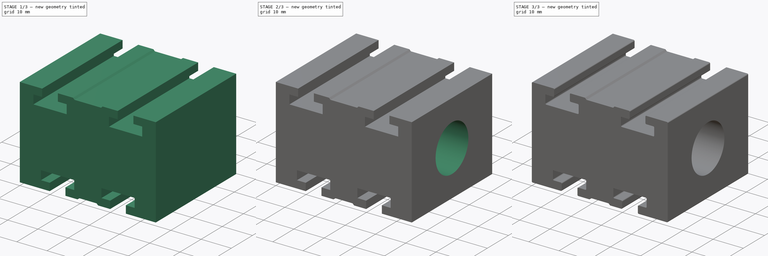
[diagram: build sequence overview — one tinted view per stage of 3, left to right]
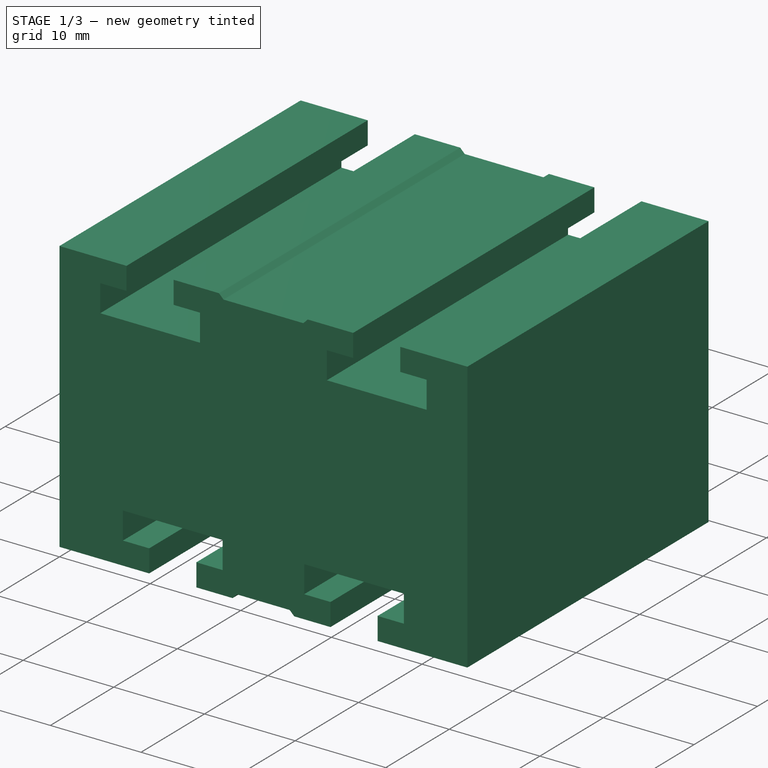
[diagram: stage 1 of 3 — iso view after this stage's code; geometry added in this stage tinted green]
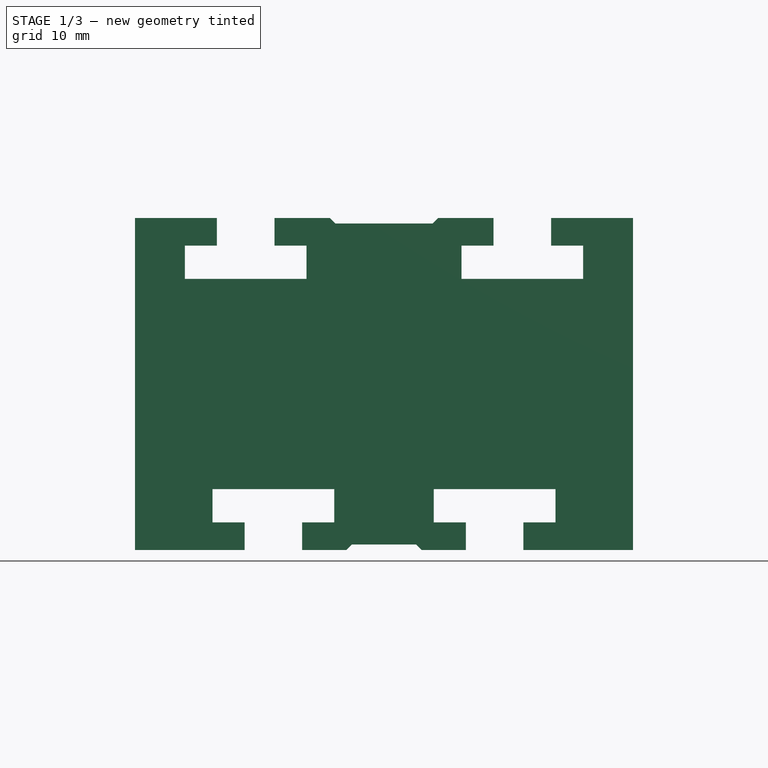
[diagram: stage 1 of 3 — front view after this stage's code; geometry added in this stage tinted green]
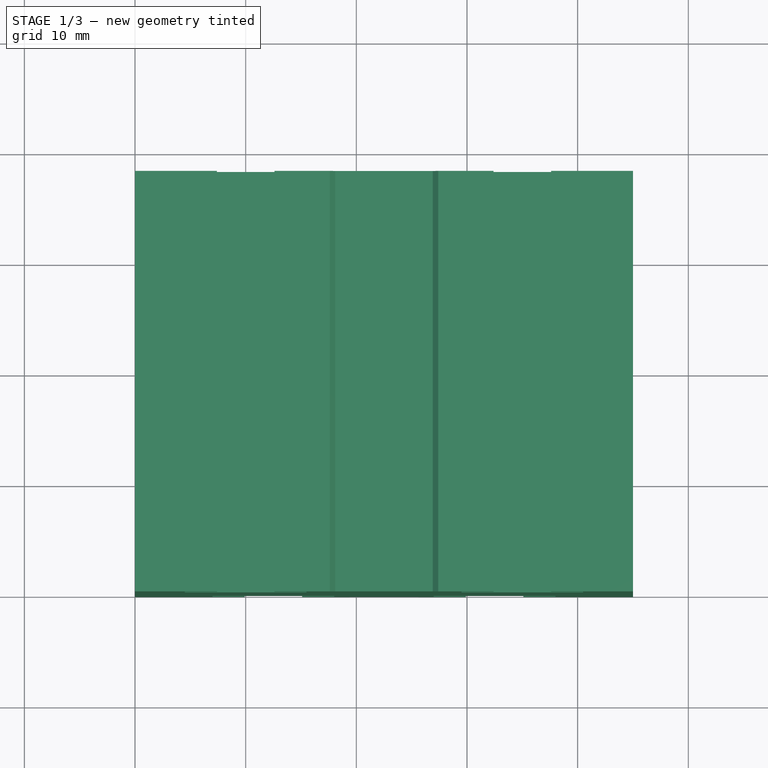
[diagram: stage 1 of 3 — top view after this stage's code; geometry added in this stage tinted green]
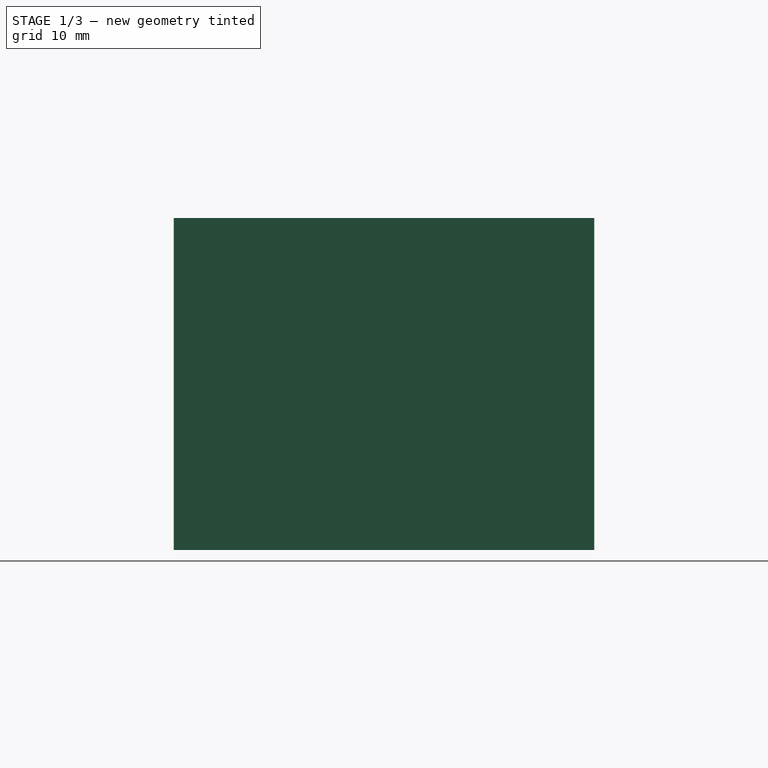
[diagram: stage 1 of 3 — right view after this stage's code; geometry added in this stage tinted green]
FCSTD DOCUMENT  (FreeCAD 0.20R27422 (Git))
Label: MGN_T8_nut_housing_1A
License: All rights reserved
LicenseURL: http://en.wikipedia.org/wiki/All_rights_reserved
objects: Sketcher::SketchObject×5, PartDesign::Hole×4, Spreadsheet::Sheet×1, PartDesign::Pad×1, PartDesign::Pocket×1, PartDesign::Fillet×1, PartDesign::Body×1
note: 20 computed .brp shape members not serialized (recipe doc carries the construction recipe); baked Part::Feature solids carry a one-line shape summary decoded from their .brp

FEATURE [Spreadsheet::Sheet] Spreadsheet  label="dim"
  cells = C1=Block dimensions; D1=block_size_x; E1(block_size_x)=45; D2=bock_size_y; E2(block_size_y)=38; D3=block_size_z; E3(block_size_z)=30; C4=T slot dimensions; D4=tslot_width; E4(tslot_width)=5.2; D5=tslot_head_width; E5(tslot_head_width)=11; D6=tslot_step_height; E6(tslot_step_height)=2.5; D7=tslot_root_height; E7(tslot_root_height)=5.5; C8=Slot Spacings; D8=slot_spacing_top; E8(slot_spacing_top)=25; D9=slot_spacing_bottom; E9(slot_spacing_bottom)=20; C10=Nut geometry; D10=nut_od; E10(nut_od)=22; D11=nut_thru_hole_dia; E11(nut_thru_hole_dia)=11; D12=nut_bolt_circle_dia; E12(nut_bolt_circle_dia)=16; D13=nut_counterbore_dia; E13(nut_counterbore_dia)=15.5; D14=nut_pocket_depth; E14(nut_pocket_depth)=3.5; D15=nut_counterbore_depth; E15(nut_counterbore_depth)=25; D16=nut_bolt_depth; E16(nut_bolt_depth)=5
FEATURE [Sketcher::SketchObject] Sketch
  FullyConstrained = false
  MapMode = 5
  Placement = pos=(0,0,0) rot=(1,0,0;1.5708rad)
  expr: Constraints[10] = <<dim>>.block_size_z
  expr: Constraints[9] = <<dim>>.block_size_x
  sketch-geometry (5):
    g0: LineSegment StartX=0 StartY=0 StartZ=0 EndX=45 EndY=0 EndZ=0
    g1: LineSegment StartX=45 StartY=0 StartZ=0 EndX=45 EndY=30 EndZ=0
    g2: LineSegment StartX=45 StartY=30 StartZ=0 EndX=0 EndY=30 EndZ=0
    g3: LineSegment StartX=0 StartY=30 StartZ=0 EndX=0 EndY=0 EndZ=0
    g4: LineSegment StartX=22.5 StartY=54.5625 StartZ=0 EndX=22.5 EndY=-13.5744 EndZ=0
  constraints (12):
    c: Coincident(g0,g1)
    c: Coincident(g1,g2)
    c: Coincident(g2,g3)
    c: Coincident(g3,g0)
    c: Horizontal(g0)
    c: Horizontal(g2)
    c: Vertical(g1)
    c: Vertical(g3)
    c: Coincident(g0,g-1)
    c: Distance(g2) = 45
    c: Distance(g1) = 30
    c: Symmetric(g0,g0,g4)
FEATURE [PartDesign::Pad] Pad  label="Block"
  Direction = (0,-1,2e-16)
  Length = 38
  Length2 = 10
  Placement = pos=(0,0,0) rot=(1,0,0;1.5708rad)
  Profile = -> Sketch
  ReferenceAxis = -> Sketch [N_Axis]
  Reversed = true
  Type = 0
  expr: Length = <<dim>>.block_size_y
FEATURE [Sketcher::SketchObject] Sketch001
  ExternalGeometry = -> [Sketch]
  FullyConstrained = false
  MapMode = 5
  Placement = pos=(0,0,0) rot=(1,0,0;1.5708rad)
  Support = -> [XZ_Plane]
  expr: Constraints[124] = <<dim>>.block_size_x / 2
  expr: Constraints[18] = <<dim>>.tslot_step_height + 1
  expr: Constraints[19] = <<dim>>.tslot_root_height - <<dim>>.tslot_step_height
  expr: Constraints[20] = <<dim>>.tslot_head_width
  expr: Constraints[21] = <<dim>>.tslot_width
  expr: Constraints[42] = <<dim>>.tslot_step_height + 1
  expr: Constraints[43] = <<dim>>.tslot_root_height - <<dim>>.tslot_step_height
  expr: Constraints[44] = <<dim>>.tslot_head_width
  expr: Constraints[45] = <<dim>>.tslot_width
  expr: Constraints[66] = <<dim>>.tslot_width
  expr: Constraints[86] = <<dim>>.tslot_width
  expr: Constraints[90] = <<dim>>.slot_spacing_top
  expr: Constraints[91] = <<dim>>.slot_spacing_bottom
  expr: Constraints[92] = <<dim>>.tslot_head_width
  expr: Constraints[93] = <<dim>>.tslot_root_height - <<dim>>.tslot_step_height
  expr: Constraints[94] = <<dim>>.tslot_step_height
  expr: Constraints[95] = <<dim>>.tslot_step_height
  sketch-geometry (46):
    g0: LineSegment StartX=4.5 StartY=27.5 StartZ=0 EndX=7.4 EndY=27.5 EndZ=0
    g1: LineSegment StartX=15.5 StartY=27.5 StartZ=0 EndX=15.5 EndY=24.5 EndZ=0
    g2: LineSegment StartX=15.5 StartY=24.5 StartZ=0 EndX=4.5 EndY=24.5 EndZ=0
    g3: LineSegment StartX=4.5 StartY=24.5 StartZ=0 EndX=4.5 EndY=27.5 EndZ=0
    g4: LineSegment StartX=12.6 StartY=27.5 StartZ=0 EndX=12.6 EndY=31 EndZ=0
    g5: LineSegment StartX=12.6 StartY=31 StartZ=0 EndX=7.4 EndY=31 EndZ=0
    g6: LineSegment StartX=7.4 StartY=31 StartZ=0 EndX=7.4 EndY=27.5 EndZ=0
    g7: LineSegment StartX=12.6 StartY=27.5 StartZ=0 EndX=15.5 EndY=27.5 EndZ=0
    g8: GeomPoint X=10 Y=27.5 Z=0
    g9: LineSegment StartX=-7.87938 StartY=15 StartZ=0 EndX=50.8772 EndY=15 EndZ=0
    g10: LineSegment StartX=29.5 StartY=27.5 StartZ=0 EndX=32.4 EndY=27.5 EndZ=0
    g11: LineSegment StartX=40.5 StartY=27.5 StartZ=0 EndX=40.5 EndY=24.5 EndZ=0
    g12: LineSegment StartX=40.5 StartY=24.5 StartZ=0 EndX=29.5 EndY=24.5 EndZ=0
    g13: LineSegment StartX=29.5 StartY=24.5 StartZ=0 EndX=29.5 EndY=27.5 EndZ=0
    g14: LineSegment StartX=37.6 StartY=27.5 StartZ=0 EndX=37.6 EndY=31 EndZ=0
    g15: LineSegment StartX=37.6 StartY=31 StartZ=0 EndX=32.4 EndY=31 EndZ=0
    g16: LineSegment StartX=32.4 StartY=31 StartZ=0 EndX=32.4 EndY=27.5 EndZ=0
    g17: LineSegment StartX=37.6 StartY=27.5 StartZ=0 EndX=40.5 EndY=27.5 EndZ=0
    g18: GeomPoint X=35 Y=27.5 Z=0
    g19: LineSegment StartX=18 StartY=2.5 StartZ=0 EndX=15.1 EndY=2.5 EndZ=0
    g20: LineSegment StartX=7 StartY=2.5 StartZ=0 EndX=7 EndY=5.5 EndZ=0
    g21: LineSegment StartX=7 StartY=5.5 StartZ=0 EndX=18 EndY=5.5 EndZ=0
    g22: LineSegment StartX=18 StartY=5.5 StartZ=0 EndX=18 EndY=2.5 EndZ=0
    g23: LineSegment StartX=9.9 StartY=2.5 StartZ=0 EndX=9.9 EndY=-1 EndZ=0
    g24: LineSegment StartX=9.9 StartY=-1 StartZ=0 EndX=15.1 EndY=-1 EndZ=0
    g25: LineSegment StartX=15.1 StartY=-1 StartZ=0 EndX=15.1 EndY=2.5 EndZ=0
    g26: LineSegment StartX=9.9 StartY=2.5 StartZ=0 EndX=7 EndY=2.5 EndZ=0
    g27: GeomPoint X=12.5 Y=2.5 Z=0
    g28: LineSegment StartX=38 StartY=2.5 StartZ=0 EndX=35.1 EndY=2.5 EndZ=0
    g29: LineSegment StartX=27 StartY=2.5 StartZ=0 EndX=27 EndY=5.5 EndZ=0
    g30: LineSegment StartX=27 StartY=5.5 StartZ=0 EndX=38 EndY=5.5 EndZ=0
    g31: LineSegment StartX=38 StartY=5.5 StartZ=0 EndX=38 EndY=2.5 EndZ=0
    g32: LineSegment StartX=29.9 StartY=2.5 StartZ=0 EndX=29.9 EndY=-1 EndZ=0
    g33: LineSegment StartX=29.9 StartY=-1 StartZ=0 EndX=35.1 EndY=-1 EndZ=0
    g34: LineSegment StartX=35.1 StartY=-1 StartZ=0 EndX=35.1 EndY=2.5 EndZ=0
    g35: LineSegment StartX=29.9 StartY=2.5 StartZ=0 EndX=27 EndY=2.5 EndZ=0
    g36: GeomPoint X=32.5 Y=2.5 Z=0
    g37: LineSegment StartX=16.6 StartY=31 StartZ=0 EndX=28.4 EndY=31 EndZ=0
    g38: LineSegment StartX=28.4 StartY=31 StartZ=0 EndX=26.9 EndY=29.5 EndZ=0
    g39: LineSegment StartX=16.6 StartY=31 StartZ=0 EndX=18.1 EndY=29.5 EndZ=0
    g40: LineSegment StartX=18.1 StartY=29.5 StartZ=0 EndX=26.9 EndY=29.5 EndZ=0
    g41: LineSegment StartX=18.1 StartY=-1 StartZ=0 EndX=26.9 EndY=-1 EndZ=0
    g42: LineSegment StartX=26.9 StartY=-1 StartZ=0 EndX=25.4 EndY=0.5 EndZ=0
    g43: LineSegment StartX=25.4 StartY=0.5 StartZ=0 EndX=19.6 EndY=0.5 EndZ=0
    g44: LineSegment StartX=19.6 StartY=0.5 StartZ=0 EndX=18.1 EndY=-1 EndZ=0
    g45: LineSegment StartX=22.5 StartY=40.5323 StartZ=0 EndX=22.5 EndY=-8.33012 EndZ=0
  constraints (125):
    c: Coincident(g7,g1)
    c: Coincident(g1,g2)
    c: Coincident(g2,g3)
    c: Coincident(g3,g0)
    c: Horizontal(g0)
    c: Horizontal(g2)
    c: Vertical(g1)
    c: Vertical(g3)
    c: Coincident(g4,g5)
    c: Coincident(g5,g6)
    c: Horizontal(g5)
    c: Vertical(g4)
    c: Vertical(g6)
    c: Equal(g3,g1)
    c: Equal(g6,g4)
    c: Equal(g7,g0)
    c: Coincident(g6,g0)
    c: Coincident(g4,g7)
    c: DistanceY(g6,g6) = 3.5
    c: DistanceY(g3,g3) = 3
    c: Distance(g2) = 11
    c: Distance(g0,g4) = 5.2
    c: Symmetric(g0,g4,g8)
    c: Symmetric(g-4,g-5,g9)
    c: Coincident(g17,g11)
    c: Coincident(g11,g12)
    c: Coincident(g12,g13)
    c: Coincident(g13,g10)
    c: Horizontal(g10)
    c: Horizontal(g12)
    c: Vertical(g11)
    c: Vertical(g13)
    c: Coincident(g14,g15)
    c: Coincident(g15,g16)
    c: Horizontal(g15)
    c: Vertical(g14)
    c: Vertical(g16)
    c: Equal(g13,g11)
    c: Equal(g16,g14)
    c: Equal(g17,g10)
    c: Coincident(g16,g10)
    c: Coincident(g14,g17)
    c: DistanceY(g16,g16) = 3.5
    c: DistanceY(g13,g13) = 3
    c: Distance(g12) = 11
    c: Distance(g10,g14) = 5.2
    c: Symmetric(g10,g14,g18)
    c: Coincident(g26,g20)
    c: Coincident(g20,g21)
    c: Coincident(g21,g22)
    c: Coincident(g22,g19)
    c: Parallel(g19,g21)
    c: Parallel(g20,g22)
    c: Coincident(g23,g24)
    c: Coincident(g24,g25)
    c: Parallel(g19,g24)
    c: Parallel(g20,g23)
    c: Parallel(g20,g25)
    c: Equal(g22,g20)
    c: Equal(g25,g23)
    c: Equal(g26,g19)
    c: Coincident(g25,g19)
    c: Coincident(g23,g26)
    c: Equal(g6,g25) = 4
    c: Equal(g3,g22) = 2.5
    c: Equal(g2,g21) = 8
    c: Distance(g19,g23) = 5.2
    c: Symmetric(g19,g23,g27)
    c: Perpendicular(g20,g19)
    c: Horizontal(g21)
    c: Coincident(g35,g29)
    c: Coincident(g29,g30)
    c: Coincident(g30,g31)
    c: Coincident(g31,g28)
    c: Parallel(g28,g30)
    c: Parallel(g29,g31)
    c: Coincident(g32,g33)
    c: Coincident(g33,g34)
    c: Parallel(g28,g33)
    c: Parallel(g29,g32)
    c: Parallel(g29,g34)
    c: Equal(g31,g29)
    c: Equal(g34,g32)
    c: Equal(g35,g28)
    c: Coincident(g34,g28)
    c: Coincident(g32,g35)
    c: Distance(g28,g32) = 5.2
    c: Symmetric(g28,g32,g36)
    c: Perpendicular(g29,g28)
    c: Horizontal(g30)
    c: Distance(g8,g18) = 25
    c: Distance(g27,g36) = 20
    c: Distance(g30) = 11
    c: DistanceY(g29,g29) = 3
    c: Distance(g1,g-3) = 2.5
    c: Distance(g20,g-5) = 2.5
    c: Equal(g32,g6)
    c: Horizontal(g37)
    c: Coincident(g38,g37)
    c: Coincident(g39,g37)
    c: Coincident(g40,g39)
    c: Coincident(g40,g38)
    c: Horizontal(g40)
    c: Angle(g39,g37) = 0.785398
    c: Angle(g37,g38) = 0.785398
    c: DistanceX(g4,g37) = 4
    c: DistanceX(g37,g15) = 4
    c: DistanceY(g39,g37) = 1.5
    c: PointOnObject(g37,g5)
    c: Horizontal(g41)
    c: Coincident(g42,g41)
    c: Coincident(g43,g42)
    c: Horizontal(g43)
    c: Coincident(g44,g43)
    c: Coincident(g44,g41)
    c: PointOnObject(g41,g24)
    c: DistanceY(g41,g43) = 1.5
    c: DistanceX(g24,g41) = 3
    c: DistanceX(g41,g32) = 3
    c: Angle(g41,g44) = 0.785398
    c: Angle(g42,g41) = 0.785398
    c: Vertical(g45)
    c: Symmetric(g8,g18,g45)
    c: Symmetric(g27,g36,g45)
    c: DistanceX(g45,g-4) = 22.5
FEATURE [PartDesign::Pocket] Pocket  label="T slots"
  BaseFeature = -> Pad
  Direction = (0,1,2e-16)
  Length = 5
  Length2 = 5
  Placement = pos=(0,0,0) rot=(1,0,0;1.5708rad)
  Profile = -> Sketch001
  ReferenceAxis = -> Sketch001 [N_Axis]
  Type = 1
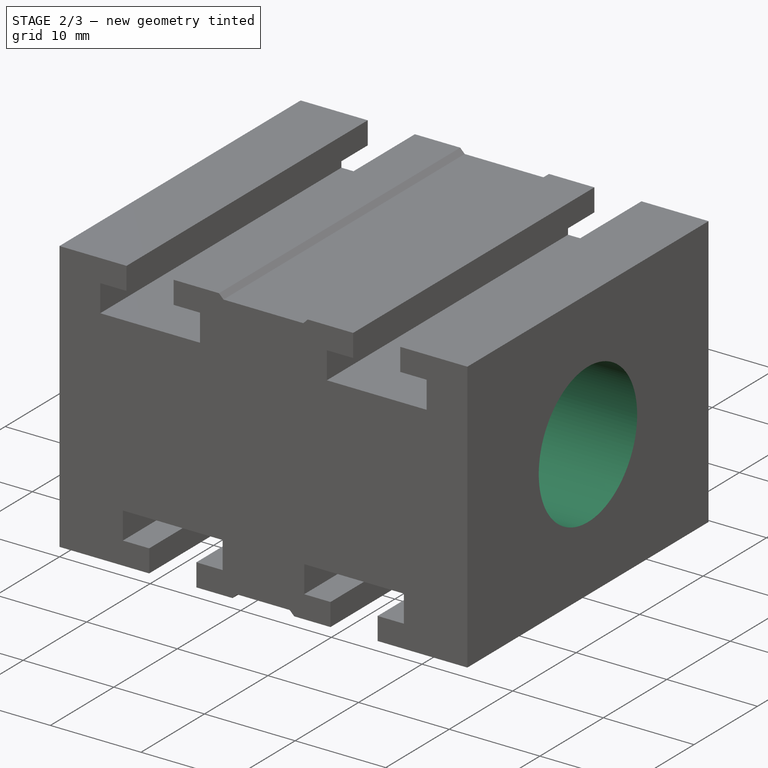
[diagram: stage 2 of 3 — iso view after this stage's code; geometry added in this stage tinted green]
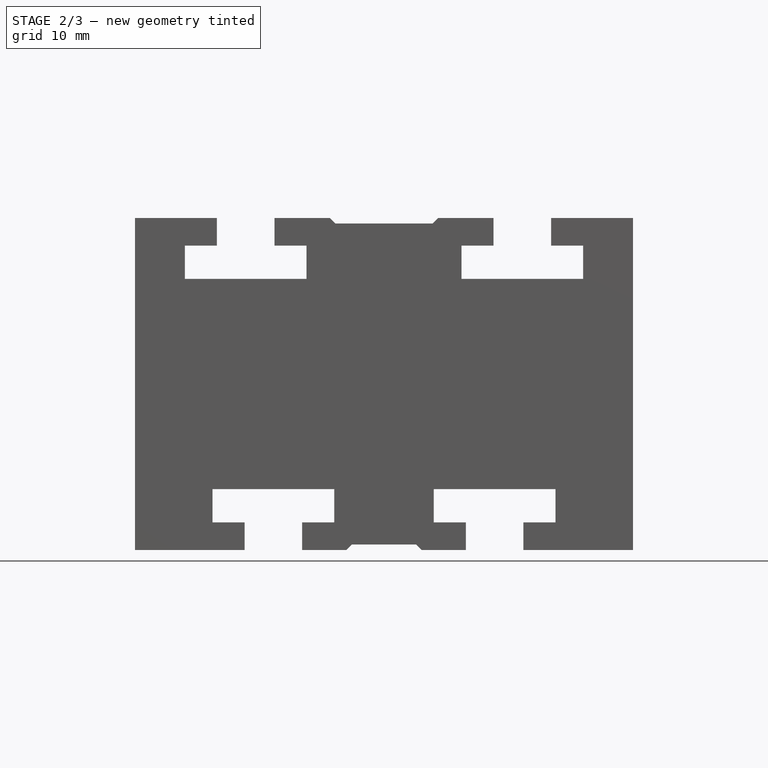
[diagram: stage 2 of 3 — front view after this stage's code; geometry added in this stage tinted green]
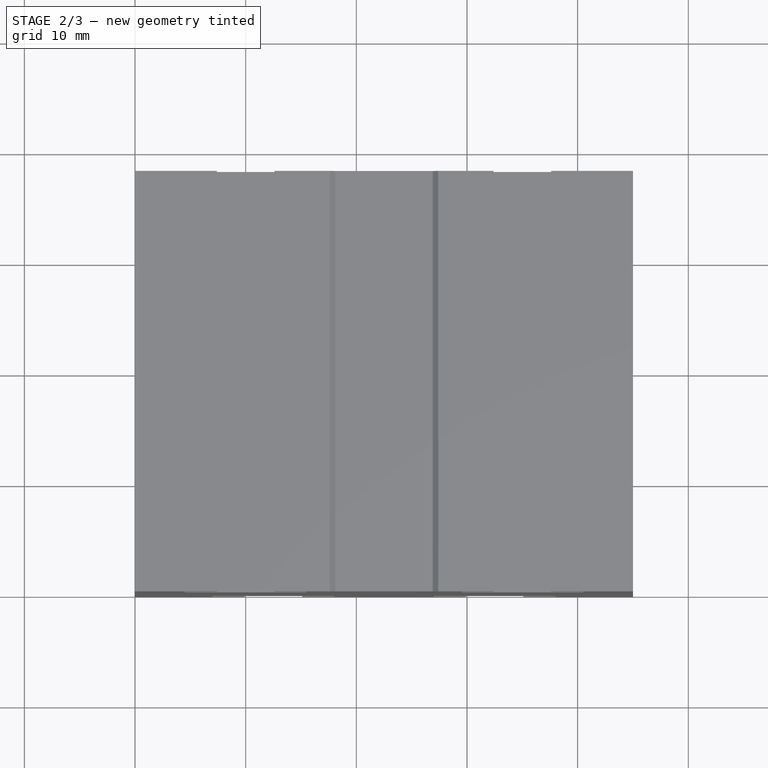
[diagram: stage 2 of 3 — top view after this stage's code; geometry added in this stage tinted green]
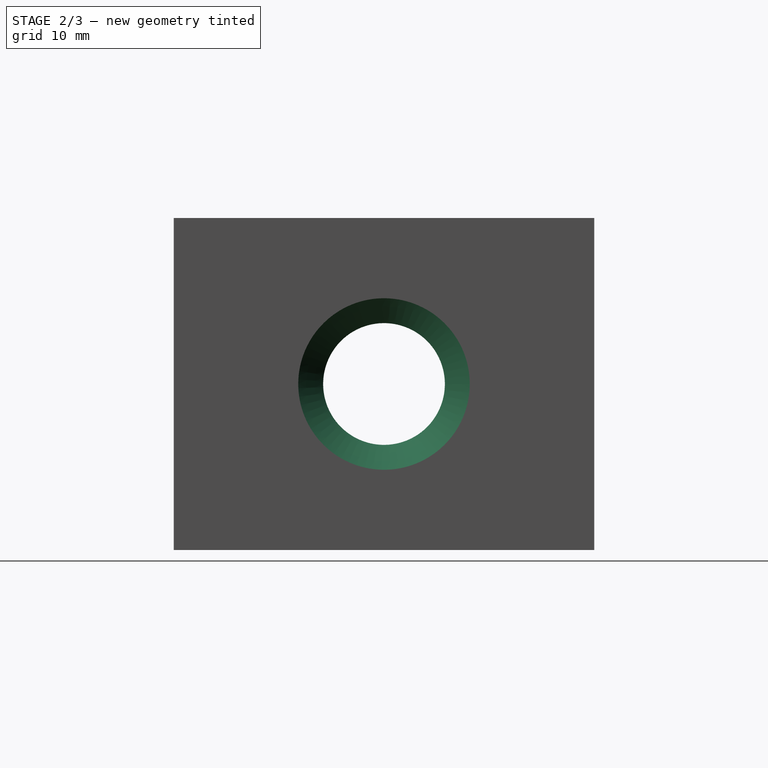
[diagram: stage 2 of 3 — right view after this stage's code; geometry added in this stage tinted green]
FEATURE [Sketcher::SketchObject] Sketch002
  ExternalGeometry = -> [Sketch,Pocket]
  FullyConstrained = false
  Placement = pos=(0,0,0) rot=(0.57735,-0.57735,-0.57735;2.0944rad)
  sketch-geometry (1):
    g0: Circle CenterX=-19 CenterY=15 CenterZ=0 NormalX=0 NormalY=0 NormalZ=1 AngleXU=0 Radius=2.33107
  constraints (1):
    c: Symmetric(g-6,g-4,g0)
FEATURE [PartDesign::Hole] Hole  label="thru hole"
  BaseFeature = -> Pocket
  CustomThreadClearance = 0
  Depth = 135.882
  DepthType = 1
  Diameter = 11
  DrillForDepth = false
  DrillPoint = 1
  DrillPointAngle = 118
  HoleCutCountersinkAngle = 90
  HoleCutCustomValues = false
  HoleCutDepth = 0
  HoleCutDiameter = 0
  HoleCutType = 0
  ModelThread = false
  Placement = pos=(0,0,0) rot=(1,0,0;1.5708rad)
  Profile = -> Sketch002
  Tapered = false
  TaperedAngle = 90
  ThreadClass = 0
  ThreadDepth = 135.882
  ThreadDepthType = 0
  ThreadDirection = 0
  ThreadFit = 0
  ThreadSize = 0
  ThreadType = 0
  Threaded = false
  UseCustomThreadClearance = false
  expr: Diameter = <<dim>>.nut_thru_hole_dia
FEATURE [PartDesign::Hole] Hole001  label="nut pocket"
  BaseFeature = -> Hole
  CustomThreadClearance = 0
  Depth = 3.5
  DepthType = 0
  Diameter = 22
  DrillForDepth = false
  DrillPoint = 0
  DrillPointAngle = 118
  HoleCutCountersinkAngle = 90
  HoleCutCustomValues = false
  HoleCutDepth = 0
  HoleCutDiameter = 0
  HoleCutType = 0
  ModelThread = false
  Placement = pos=(0,0,0) rot=(1,0,0;1.5708rad)
  Profile = -> Sketch002
  Tapered = false
  TaperedAngle = 90
  ThreadClass = 0
  ThreadDepth = 3.5
  ThreadDepthType = 0
  ThreadDirection = 0
  ThreadFit = 0
  ThreadSize = 0
  ThreadType = 0
  Threaded = false
  UseCustomThreadClearance = false
  expr: Depth = <<dim>>.nut_pocket_depth
  expr: Diameter = <<dim>>.nut_od
FEATURE [Sketcher::SketchObject] Sketch003
  AttachmentOffset = pos=(45,0,45) rot=(0,0,1;0rad)
  ExternalGeometry = -> [Hole001,Sketch]
  FullyConstrained = false
  MapMode = 5
  Placement = pos=(45,45,0) rot=(0.57735,0.57735,0.57735;2.0944rad)
  Support = -> [YZ_Plane]
  expr: .AttachmentOffset.Base.x = <<dim>>.block_size_x
  expr: .AttachmentOffset.Base.y = 0
  expr: .AttachmentOffset.Base.z = <<dim>>.block_size_x
  sketch-geometry (1):
    g0: Circle CenterX=-26 CenterY=15 CenterZ=0 NormalX=0 NormalY=0 NormalZ=1 AngleXU=0 Radius=3.24667
  constraints (1):
    c: Symmetric(g-6,g-5,g0)
FEATURE [PartDesign::Hole] Hole002  label="counterbore"
  BaseFeature = -> Hole001
  CustomThreadClearance = 0
  Depth = 25
  DepthType = 0
  Diameter = 15.5
  DrillForDepth = false
  DrillPoint = 1
  DrillPointAngle = 118
  HoleCutCountersinkAngle = 90
  HoleCutCustomValues = false
  HoleCutDepth = 0
  HoleCutDiameter = 0
  HoleCutType = 0
  ModelThread = false
  Placement = pos=(0,0,0) rot=(1,0,0;1.5708rad)
  Profile = -> Sketch003
  Tapered = false
  TaperedAngle = 90
  ThreadClass = 0
  ThreadDepth = 25
  ThreadDepthType = 0
  ThreadDirection = 0
  ThreadFit = 0
  ThreadSize = 0
  ThreadType = 0
  Threaded = false
  UseCustomThreadClearance = false
  expr: Depth = <<dim>>.nut_counterbore_depth
  expr: Diameter = <<dim>>.nut_counterbore_dia
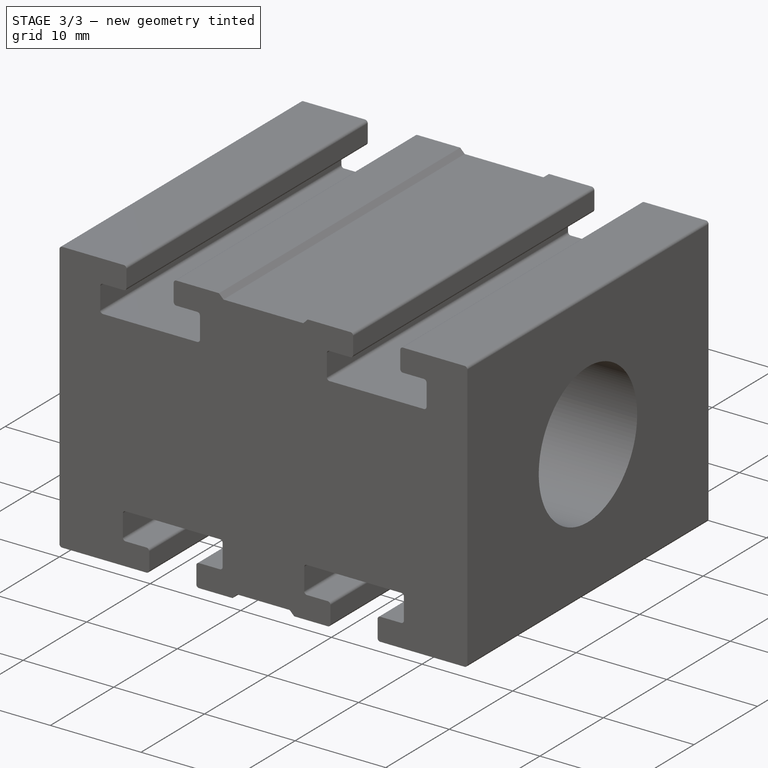
[diagram: stage 3 of 3 — iso view after this stage's code; geometry added in this stage tinted green]
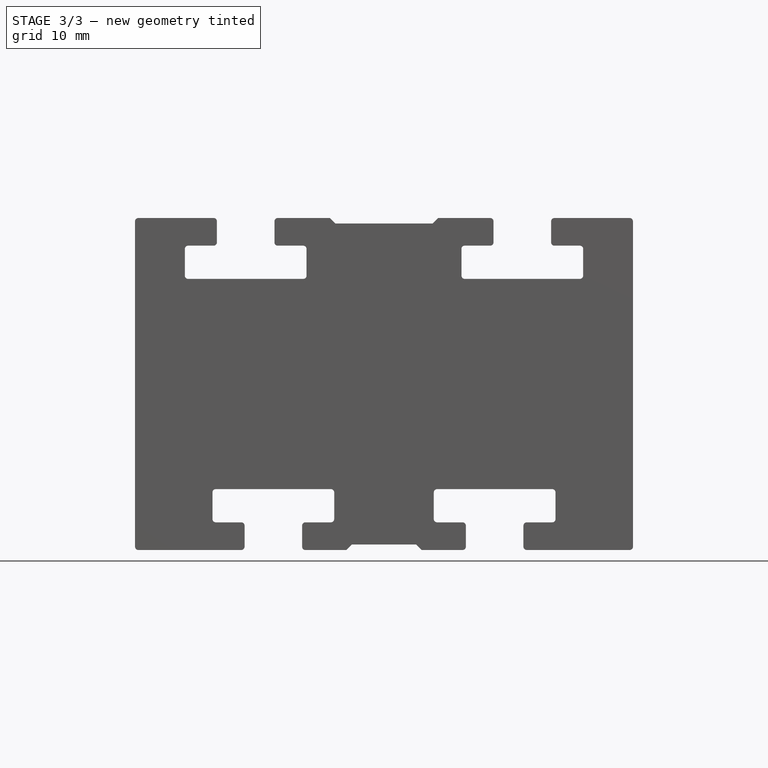
[diagram: stage 3 of 3 — front view after this stage's code; geometry added in this stage tinted green]
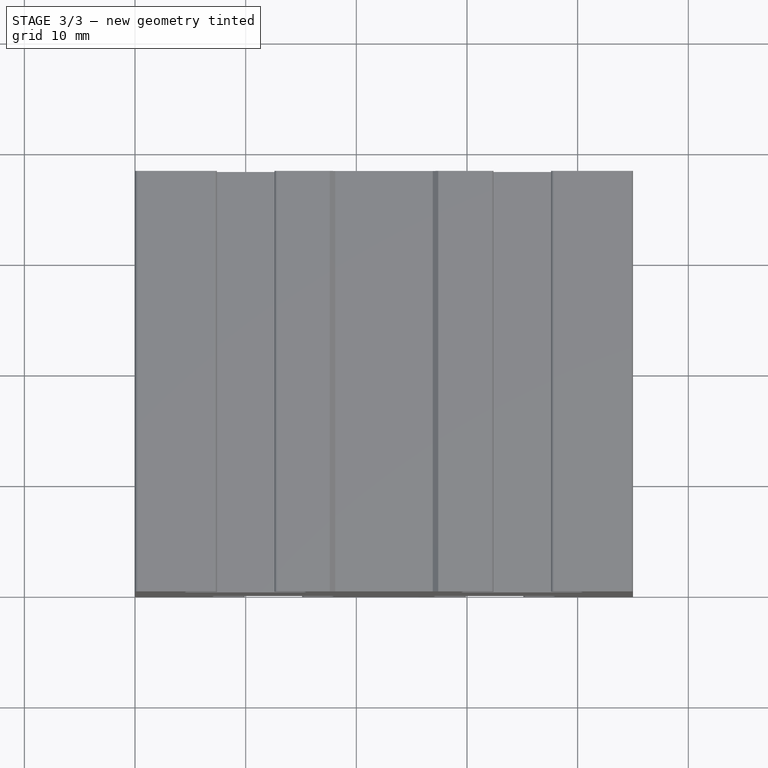
[diagram: stage 3 of 3 — top view after this stage's code; geometry added in this stage tinted green]
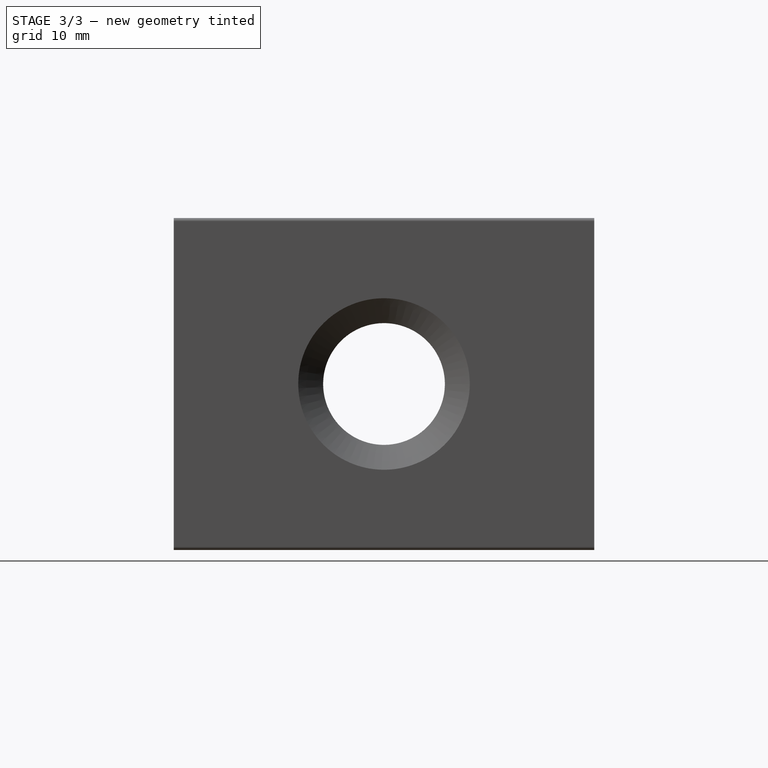
[diagram: stage 3 of 3 — right view after this stage's code; geometry added in this stage tinted green]
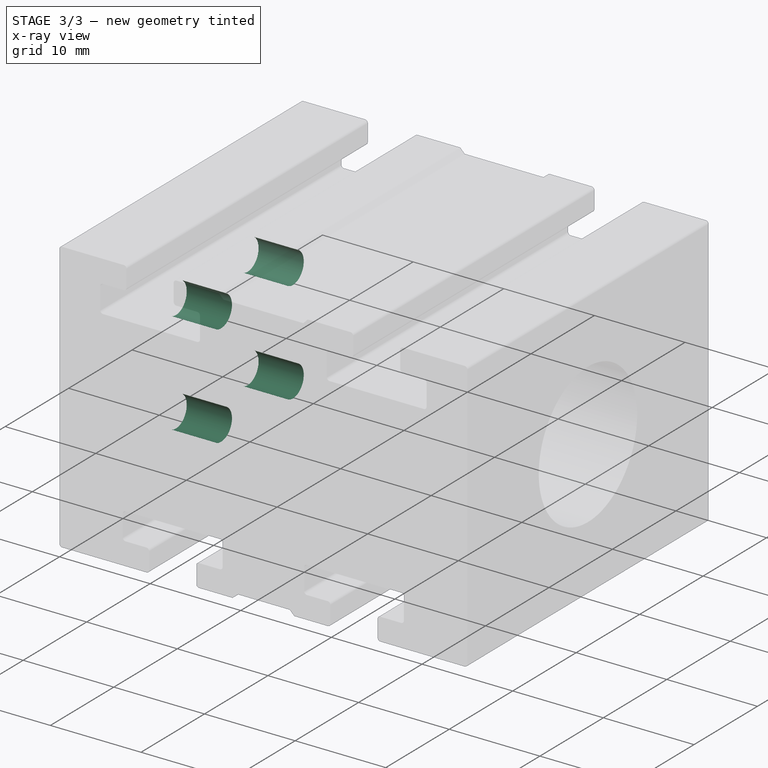
[diagram: stage 3 of 3 — x-ray composite at the iso view; earlier geometry ghosted, this stage's added geometry solid]
FEATURE [Sketcher::SketchObject] Sketch004
  ExternalGeometry = -> [Hole002,Sketch]
  FullyConstrained = false
  MapMode = 5
  Placement = pos=(0,0,0) rot=(-0.57735,0.57735,0.57735;4.18879rad)
  Support = -> [YZ_Plane]
  expr: Constraints[0] = <<dim>>.nut_bolt_circle_dia
  sketch-geometry (8):
    g0: Circle CenterX=-19 CenterY=15 CenterZ=0 NormalX=0 NormalY=0 NormalZ=1 AngleXU=0 Radius=8
    g1: LineSegment StartX=-24.6569 StartY=9.34315 StartZ=0 EndX=-13.3431 EndY=20.6569 EndZ=0
    g2: LineSegment StartX=-24.6569 StartY=20.6569 StartZ=0 EndX=-13.3431 EndY=9.34315 EndZ=0
    g3: LineSegment StartX=-19 StartY=15 StartZ=0 EndX=-17.0868 EndY=15 EndZ=0
    g4: Circle CenterX=-24.6569 CenterY=20.6569 CenterZ=0 NormalX=0 NormalY=0 NormalZ=1 AngleXU=0 Radius=1.25
    g5: Circle CenterX=-24.6569 CenterY=9.34315 CenterZ=0 NormalX=0 NormalY=0 NormalZ=1 AngleXU=0 Radius=1.25
    g6: Circle CenterX=-13.3431 CenterY=9.34315 CenterZ=0 NormalX=0 NormalY=0 NormalZ=1 AngleXU=0 Radius=1.25
    g7: Circle CenterX=-13.3431 CenterY=20.6569 CenterZ=0 NormalX=0 NormalY=0 NormalZ=1 AngleXU=0 Radius=1.25
  constraints (20):
    c: Diameter(g0) = 16
    c: PointOnObject(g1,g0)
    c: PointOnObject(g1,g0)
    c: PointOnObject(g2,g0)
    c: PointOnObject(g2,g0)
    c: PointOnObject(g0,g1)
    c: PointOnObject(g0,g2)
    c: Angle(g2,g1) = 1.5708
    c: Coincident(g3,g0)
    c: Horizontal(g3)
    c: Angle(g2,g3) = 0.785398
    c: Coincident(g4,g2)
    c: Coincident(g5,g1)
    c: Coincident(g6,g2)
    c: Coincident(g7,g1)
    c: Diameter(g4) = 2.5
    c: Diameter(g7) = 2.5
    c: Diameter(g5) = 2.5
    c: Diameter(g6) = 2.5
    c: Symmetric(g-6,g-4,g0)
FEATURE [PartDesign::Hole] Hole003  label="M3 threaded holes"
  BaseFeature = -> Hole002
  CustomThreadClearance = 0
  Depth = 8.5
  DepthType = 0
  Diameter = 3.4
  DrillForDepth = false
  DrillPoint = 1
  DrillPointAngle = 118
  HoleCutCountersinkAngle = 90
  HoleCutCustomValues = false
  HoleCutDepth = 0
  HoleCutDiameter = 6.1
  HoleCutType = 0
  ModelThread = false
  Placement = pos=(0,0,0) rot=(1,0,0;1.5708rad)
  Profile = -> Sketch004
  Tapered = false
  TaperedAngle = 90
  ThreadClass = 0
  ThreadDepth = 8.5
  ThreadDepthType = 0
  ThreadDirection = 0
  ThreadFit = 0
  ThreadSize = 9
  ThreadType = 1
  Threaded = false
  UseCustomThreadClearance = false
  expr: Depth = <<dim>>.nut_pocket_depth + <<dim>>.nut_bolt_depth
FEATURE [PartDesign::Fillet] Fillet
  Base = -> Hole003 [Edge4,Edge133,Edge134,Edge49,Edge2,Edge130,Edge129,Edge132,Edge131,Edge121,Edge122,Edge123,Edge124,Edge117,Edge118,Edge119,Edge120,Edge115,Edge114,Edge110,Edge111,Edge112,Edge113,Edge107,Edge106,Edge98,Edge99,Edge100,Edge101,Edge95,Edge94,Edge97,Edge96,Edge92,Edge109,Edge108]
  BaseFeature = -> Hole003
  Placement = pos=(0,0,0) rot=(1,0,0;1.5708rad)
  Radius = 0.3
  SupportTransform = false
  UseAllEdges = false
FEATURE [PartDesign::Body] Body
  Group = -> [Sketch,Pad,Sketch001,Pocket,Sketch002,Hole,Hole001,Sketch003,Hole002,Sketch004,Hole003,Fillet]
  Origin = -> Origin
  Tip = -> Fillet
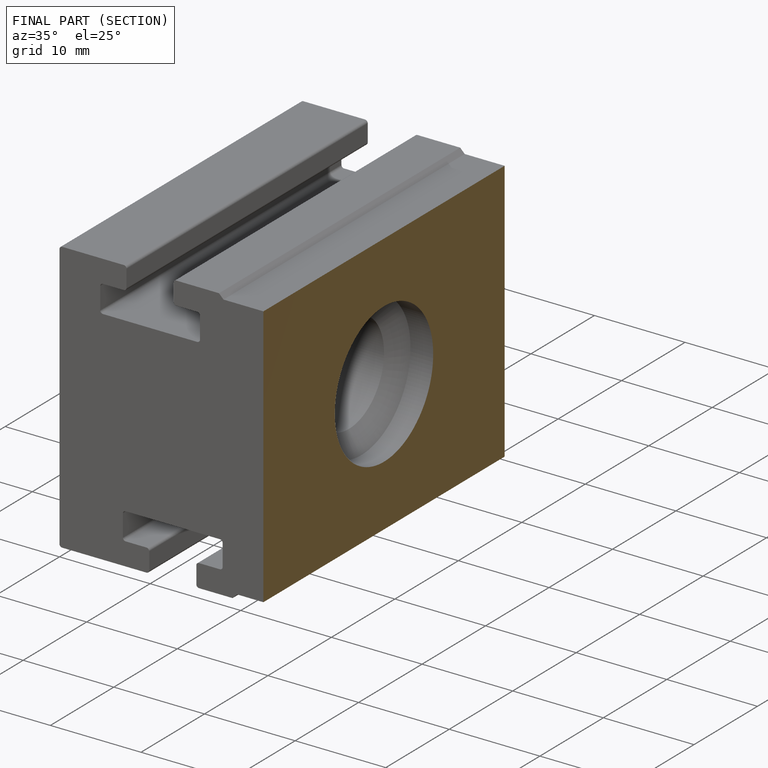
[diagram: finished part — half-section view (interior)]
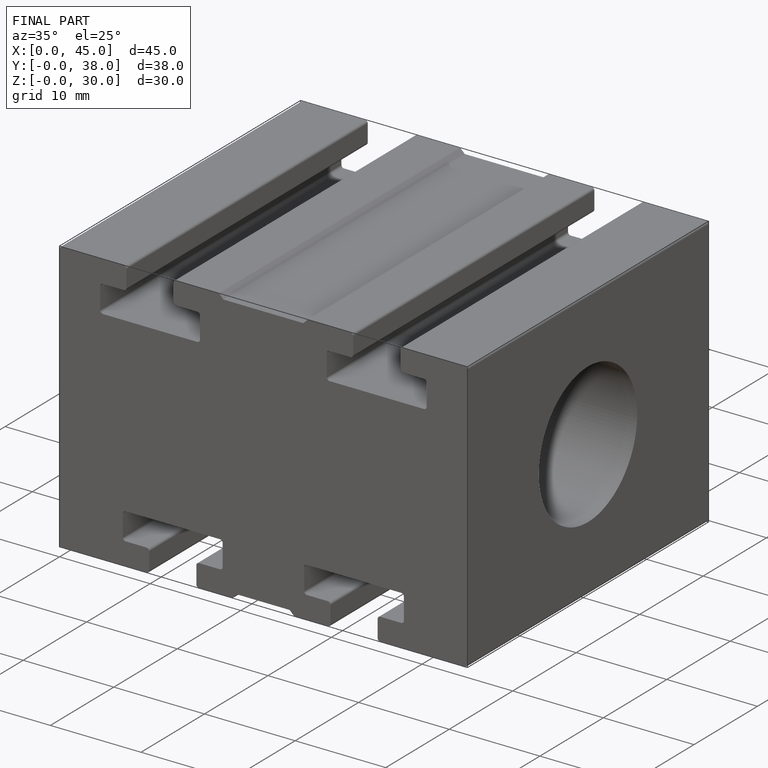
[diagram: finished part — iso view with bounding-box wireframe]
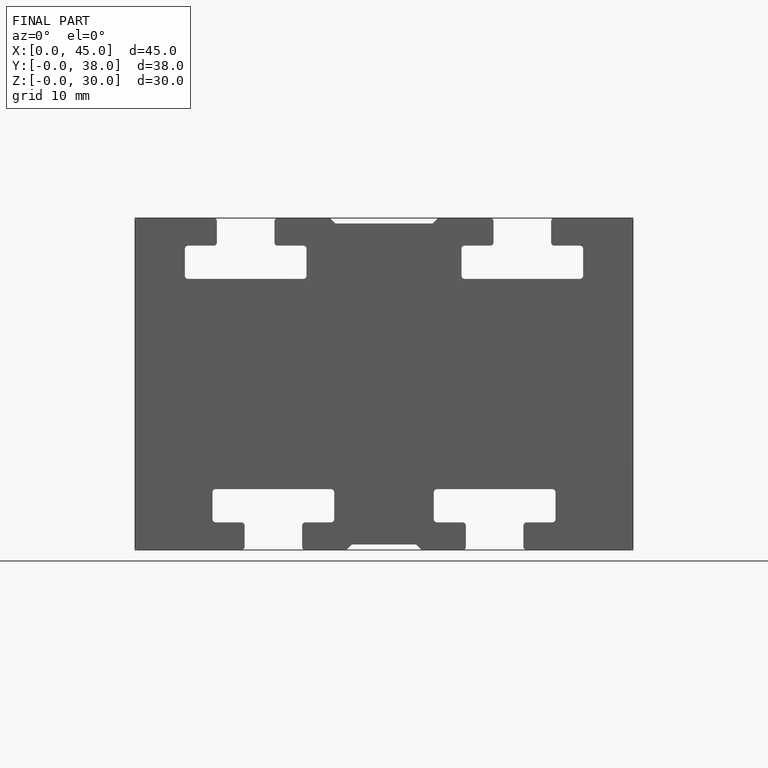
[diagram: finished part — front view with bounding-box wireframe]
